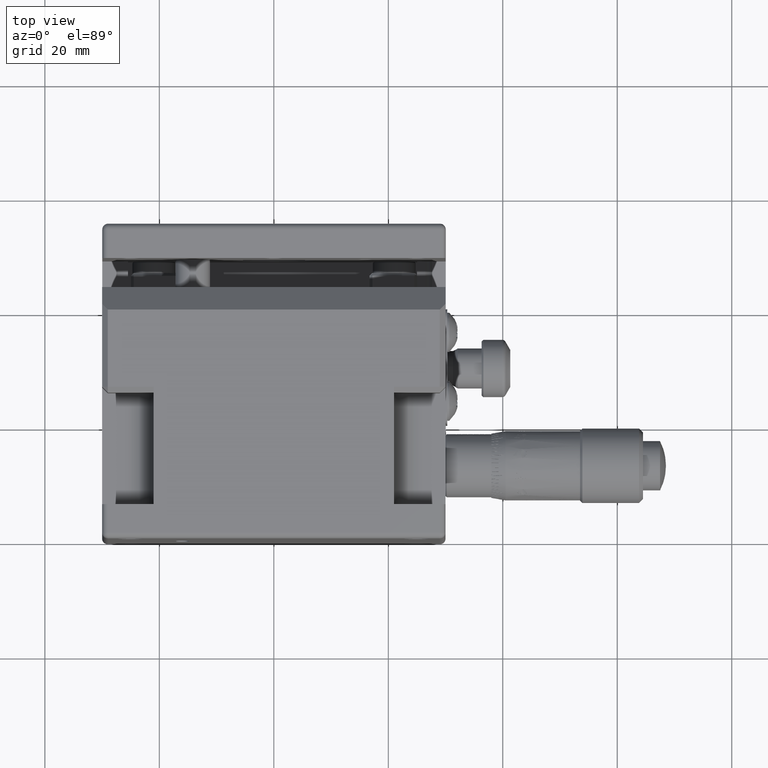
[diagram: clean part render]
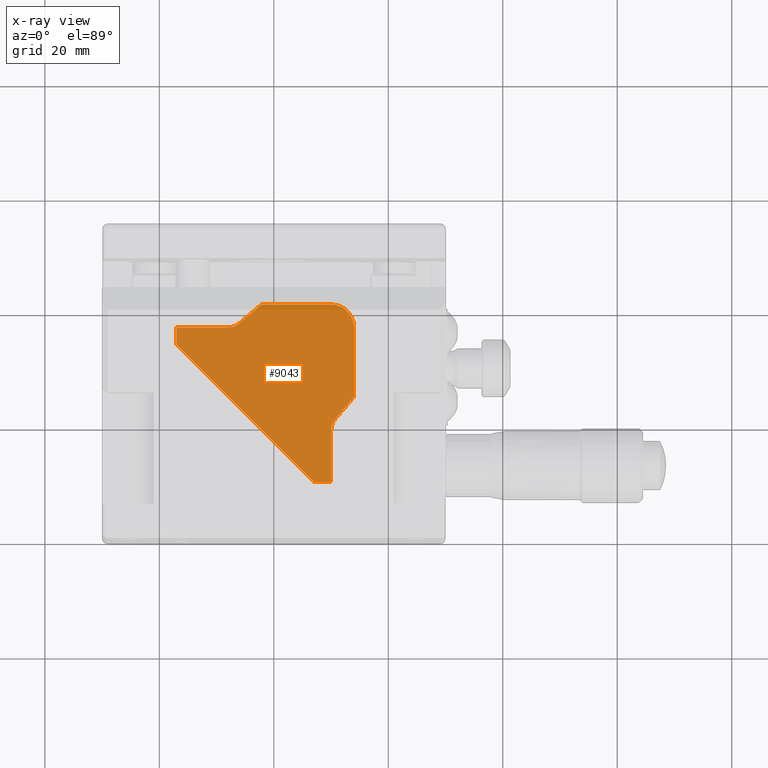
[diagram: x-ray — body ghosted, one internal face saturated and labeled with its STEP entity id]
A machine part, top view, then the same camera in x-ray: the body is ghosted and one INTERNAL B-rep face — a face not visible from any outside direction — is saturated and labeled: STEP entity #9043.
In plain terms, the highlighted planar face has unit normal (0, 0, -1).
Its self-contained STEP definition (entity closure, byte-faithful):
#208 = VERTEX_POINT ( 'NONE', #25655 ) ;
#649 = LINE ( 'NONE', #18266, #58587 ) ;
#1130 = VERTEX_POINT ( 'NONE', #30057 ) ;
#1484 = ORIENTED_EDGE ( 'NONE', *, *, #40469, .F. ) ;
#2468 = CARTESIAN_POINT ( 'NONE',  ( -8.000000000000000000, 37.19999999999999574, 9.500000000000000000 ) ) ;
#3023 = DIRECTION ( 'NONE',  ( 0.7071067811865465735, -0.7071067811865485719, 0.000000000000000000 ) ) ;
#3062 = VERTEX_POINT ( 'NONE', #56978 ) ;
#3758 = EDGE_CURVE ( 'NONE', #17924, #3062, #58945, .T. ) ;
#4331 = EDGE_CURVE ( 'NONE', #3062, #56286, #21225, .T. ) ;
#4649 = CARTESIAN_POINT ( 'NONE',  ( -17.00000000000000000, 37.19999999999999574, 9.500000000000000000 ) ) ;
#5597 = CARTESIAN_POINT ( 'NONE',  ( 10.00000000000000000, 10.20000000000000107, 9.500000000000000000 ) ) ;
#5865 = EDGE_CURVE ( 'NONE', #37193, #57445, #56125, .T. ) ;
#5920 = CARTESIAN_POINT ( 'NONE',  ( -8.000000000000000000, 40.20000000000000284, 9.500000000000000000 ) ) ;
#5949 = LINE ( 'NONE', #42327, #7442 ) ;
#6098 = DIRECTION ( 'NONE',  ( 0.000000000000000000, 1.000000000000000000, 0.000000000000000000 ) ) ;
#7074 = CARTESIAN_POINT ( 'NONE',  ( -2.141074926824479974, 41.20000000000000284, 9.500000000000000000 ) ) ;
#7080 = ORIENTED_EDGE ( 'NONE', *, *, #3758, .F. ) ;
#7121 = CARTESIAN_POINT ( 'NONE',  ( -17.00000000000000000, 37.19999999999999574, 9.500000000000000000 ) ) ;
#7442 = VECTOR ( 'NONE', #11579, 1000.000000000000000 ) ;
#7521 = ORIENTED_EDGE ( 'NONE', *, *, #14850, .F. ) ;
#9043 = ADVANCED_FACE ( 'NONE', ( #23022 ), #22145, .T. ) ;
#9169 = EDGE_CURVE ( 'NONE', #1130, #40235, #12631, .T. ) ;
#10486 = CARTESIAN_POINT ( 'NONE',  ( 13.00000000000000000, 19.19999999999999929, 9.500000000000000000 ) ) ;
#11072 = DIRECTION ( 'NONE',  ( 0.000000000000000000, 0.000000000000000000, -1.000000000000000000 ) ) ;
#11579 = DIRECTION ( 'NONE',  ( 0.000000000000000000, 1.000000000000000000, 0.000000000000000000 ) ) ;
#12631 = CIRCLE ( 'NONE', #20234, 4.000000000000000000 ) ;
#12650 = EDGE_LOOP ( 'NONE', ( #40288, #7521, #35710, #1484, #33884, #20448, #33775, #55477, #52725, #7080, #54290, #50010 ) ) ;
#13704 = EDGE_CURVE ( 'NONE', #208, #37193, #41392, .T. ) ;
#14377 = DIRECTION ( 'NONE',  ( 0.6427876096865408062, 0.7660444431189766812, 0.000000000000000000 ) ) ;
#14518 = AXIS2_PLACEMENT_3D ( 'NONE', #33190, #41278, #36517 ) ;
#14687 = VERTEX_POINT ( 'NONE', #2468 ) ;
#14735 = CARTESIAN_POINT ( 'NONE',  ( 7.000000000000079936, 10.20000000000000107, 9.500000000000000000 ) ) ;
#14850 = EDGE_CURVE ( 'NONE', #40235, #28886, #649, .T. ) ;
#15323 = CARTESIAN_POINT ( 'NONE',  ( -8.000000000000000000, 37.19999999999999574, 9.500000000000000000 ) ) ;
#15738 = CARTESIAN_POINT ( 'NONE',  ( 10.00000000000000000, 37.19999999999999574, 9.500000000000000000 ) ) ;
#17487 = DIRECTION ( 'NONE',  ( -1.156482317317906040E-15, -1.000000000000000000, 0.000000000000000000 ) ) ;
#17785 = CARTESIAN_POINT ( 'NONE',  ( 10.70186667064314001, 21.12836282905964680, 9.500000000000000000 ) ) ;
#17924 = VERTEX_POINT ( 'NONE', #7121 ) ;
#18266 = CARTESIAN_POINT ( 'NONE',  ( 10.00000000000000000, 41.20000000000000284, 9.500000000000000000 ) ) ;
#18896 = LINE ( 'NONE', #23087, #30145 ) ;
#19198 = EDGE_CURVE ( 'NONE', #14687, #17924, #20092, .T. ) ;
#19330 = VERTEX_POINT ( 'NONE', #5597 ) ;
#19551 = EDGE_CURVE ( 'NONE', #56286, #19330, #21961, .T. ) ;
#19893 = VECTOR ( 'NONE', #28160, 1000.000000000000000 ) ;
#20092 = LINE ( 'NONE', #15323, #19893 ) ;
#20234 = AXIS2_PLACEMENT_3D ( 'NONE', #15738, #52124, #57197 ) ;
#20448 = ORIENTED_EDGE ( 'NONE', *, *, #13704, .F. ) ;
#21225 = LINE ( 'NONE', #40316, #58667 ) ;
#21961 = LINE ( 'NONE', #30310, #27537 ) ;
#22145 = PLANE ( 'NONE',  #32632 ) ;
#22559 = VECTOR ( 'NONE', #14377, 1000.000000000000114 ) ;
#23022 = FACE_OUTER_BOUND ( 'NONE', #12650, .T. ) ;
#23087 = CARTESIAN_POINT ( 'NONE',  ( -2.141074926824479974, 41.20000000000000284, 9.500000000000000000 ) ) ;
#23667 = DIRECTION ( 'NONE',  ( -0.7660444431189776804, -0.6427876096865396960, 0.000000000000000000 ) ) ;
#25655 = CARTESIAN_POINT ( 'NONE',  ( 10.00000000000000000, 19.19999999999999929, 9.500000000000000000 ) ) ;
#26138 = DIRECTION ( 'NONE',  ( 1.000000000000000000, 0.000000000000000000, 0.000000000000000000 ) ) ;
#26998 = VECTOR ( 'NONE', #6098, 1000.000000000000000 ) ;
#27537 = VECTOR ( 'NONE', #26138, 1000.000000000000000 ) ;
#28160 = DIRECTION ( 'NONE',  ( -1.000000000000000000, -2.891205793294675368E-16, 0.000000000000000000 ) ) ;
#28742 = LINE ( 'NONE', #55323, #26998 ) ;
#28886 = VERTEX_POINT ( 'NONE', #7074 ) ;
#30057 = CARTESIAN_POINT ( 'NONE',  ( 14.00000000000000000, 37.19999999999999574, 9.500000000000000000 ) ) ;
#30145 = VECTOR ( 'NONE', #23667, 1000.000000000000000 ) ;
#30310 = CARTESIAN_POINT ( 'NONE',  ( 7.000000000000079936, 10.20000000000000107, 9.500000000000000000 ) ) ;
#32632 = AXIS2_PLACEMENT_3D ( 'NONE', #5920, #58527, #40917 ) ;
#33190 = CARTESIAN_POINT ( 'NONE',  ( -8.000000000000000000, 40.20000000000000284, 9.500000000000000000 ) ) ;
#33775 = ORIENTED_EDGE ( 'NONE', *, *, #36178, .F. ) ;
#33884 = ORIENTED_EDGE ( 'NONE', *, *, #5865, .F. ) ;
#35049 = EDGE_CURVE ( 'NONE', #41509, #14687, #40259, .T. ) ;
#35710 = ORIENTED_EDGE ( 'NONE', *, *, #9169, .F. ) ;
#36178 = EDGE_CURVE ( 'NONE', #19330, #208, #28742, .T. ) ;
#36476 = DIRECTION ( 'NONE',  ( -1.000000000000000000, -6.681451768832949226E-17, 0.000000000000000000 ) ) ;
#36517 = DIRECTION ( 'NONE',  ( -1.000000000000000000, 0.000000000000000000, 0.000000000000000000 ) ) ;
#37193 = VERTEX_POINT ( 'NONE', #17785 ) ;
#40235 = VERTEX_POINT ( 'NONE', #58956 ) ;
#40259 = CIRCLE ( 'NONE', #14518, 2.999999999999999112 ) ;
#40288 = ORIENTED_EDGE ( 'NONE', *, *, #50385, .F. ) ;
#40316 = CARTESIAN_POINT ( 'NONE',  ( -17.00000000000000000, 34.20000000000000284, 9.500000000000000000 ) ) ;
#40469 = EDGE_CURVE ( 'NONE', #57445, #1130, #5949, .T. ) ;
#40917 = DIRECTION ( 'NONE',  ( 0.000000000000000000, -1.000000000000000000, 0.000000000000000000 ) ) ;
#41278 = DIRECTION ( 'NONE',  ( 0.000000000000000000, 0.000000000000000000, -1.000000000000000000 ) ) ;
#41392 = CIRCLE ( 'NONE', #48047, 3.000000000000000888 ) ;
#41509 = VERTEX_POINT ( 'NONE', #42979 ) ;
#42327 = CARTESIAN_POINT ( 'NONE',  ( 14.00000000000000000, 25.05892507317544826, 9.500000000000000000 ) ) ;
#42707 = DIRECTION ( 'NONE',  ( -1.000000000000000000, 0.000000000000000000, 0.000000000000000000 ) ) ;
#42979 = CARTESIAN_POINT ( 'NONE',  ( -6.071637170940299200, 37.90186667064310200, 9.500000000000000000 ) ) ;
#43043 = VECTOR ( 'NONE', #17487, 1000.000000000000000 ) ;
#46553 = CARTESIAN_POINT ( 'NONE',  ( 14.00000000000000000, 25.05892507317544826, 9.500000000000000000 ) ) ;
#48047 = AXIS2_PLACEMENT_3D ( 'NONE', #10486, #11072, #42707 ) ;
#50010 = ORIENTED_EDGE ( 'NONE', *, *, #35049, .F. ) ;
#50385 = EDGE_CURVE ( 'NONE', #28886, #41509, #18896, .T. ) ;
#52124 = DIRECTION ( 'NONE',  ( 0.000000000000000000, 0.000000000000000000, 1.000000000000000000 ) ) ;
#52725 = ORIENTED_EDGE ( 'NONE', *, *, #4331, .F. ) ;
#54290 = ORIENTED_EDGE ( 'NONE', *, *, #19198, .F. ) ;
#55247 = CARTESIAN_POINT ( 'NONE',  ( 10.70186667064314001, 21.12836282905964680, 9.500000000000000000 ) ) ;
#55323 = CARTESIAN_POINT ( 'NONE',  ( 10.00000000000000000, 10.20000000000000107, 9.500000000000000000 ) ) ;
#55477 = ORIENTED_EDGE ( 'NONE', *, *, #19551, .F. ) ;
#56125 = LINE ( 'NONE', #55247, #22559 ) ;
#56286 = VERTEX_POINT ( 'NONE', #14735 ) ;
#56978 = CARTESIAN_POINT ( 'NONE',  ( -17.00000000000000000, 34.20000000000000284, 9.500000000000000000 ) ) ;
#57197 = DIRECTION ( 'NONE',  ( 1.000000000000000000, 0.000000000000000000, 0.000000000000000000 ) ) ;
#57445 = VERTEX_POINT ( 'NONE', #46553 ) ;
#58527 = DIRECTION ( 'NONE',  ( 0.000000000000000000, 0.000000000000000000, -1.000000000000000000 ) ) ;
#58587 = VECTOR ( 'NONE', #36476, 1000.000000000000000 ) ;
#58667 = VECTOR ( 'NONE', #3023, 1000.000000000000000 ) ;
#58945 = LINE ( 'NONE', #4649, #43043 ) ;
#58956 = CARTESIAN_POINT ( 'NONE',  ( 10.00000000000000000, 41.20000000000000284, 9.500000000000000000 ) ) ;